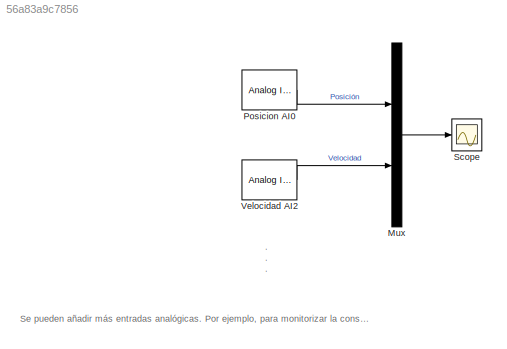
MODEL slx_56a83a9c7856
KIND model
CONFIG AbsTol = auto
CONFIG EnableMultiTasking = off
CONFIG FixedStep = 0.00005
CONFIG MaxStep = auto
CONFIG MinStep = auto
CONFIG RelTol = 1e-3
CONFIG SampleTimeConstraint = Unconstrained
CONFIG SolverName = ode8
CONFIG StartTime = 0.0
CONFIG StopTime = 10
BLOCK [Mux] Mux
  DisplayOption = bar
  Inputs = 2
BLOCK [Reference] Posicion AI0  REF=sldrtlib/Analog Input
  AttributesFormatString = National Instruments\nPCIe-6321 [auto]
  SourceBlock = sldrtlib/Analog Input
  SourceType = Simulink Desktop Real-Time Analog Input
BLOCK [Scope] Scope
  Floating = off
  NumInputPorts = 1
  ScopeSpecificationString = Simulink.scopes.TimeScopeBlockCfg('CurrentConfiguration', extmgr.ConfigurationSet(extmgr.Configuration('Core','General UI',true),extmgr.Configuration('Core','Source UI',true),extmgr.Configuration('Sources','WiredSimulink',true),extmgr.Configuration('Visuals','Time Domain',true,'SerializedDisplays',{struct('MinYLimReal','-13.41093','MaxYLimReal','12.83973','YLabelReal','','MinYLimMag','0.00000','Ma...<+1391ch>
BLOCK [Reference] Velocidad AI2  REF=sldrtlib/Analog Input
  AttributesFormatString = National Instruments\nPCIe-6321 [auto]
  SourceBlock = sldrtlib/Analog Input
  SourceType = Simulink Desktop Real-Time Analog Input
ANNOTATION (root): Se pueden añadir más entradas analógicas. Por ejemplo, para monitorizar la consigna.
ANNOTATION (root): . . .
LINE Mux:1 -> Scope:1
LINE Posicion AI0:1 -> Mux:1
LINE Velocidad AI2:1 -> Mux:2
